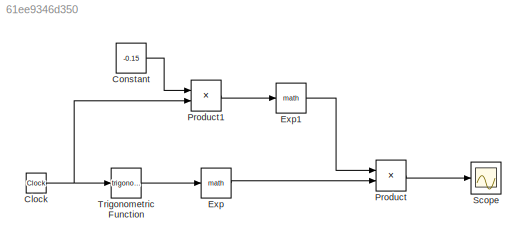
MODEL slx_61ee9346d350
KIND model
CONFIG AbsTol = auto
CONFIG EnableMultiTasking = off
CONFIG FixedStep = auto
CONFIG MaxStep = auto
CONFIG MinStep = auto
CONFIG RelTol = 1e-3
CONFIG SampleTimeConstraint = Unconstrained
CONFIG Solver = VariableStepAuto
CONFIG SolverName = VariableStepAuto
CONFIG StartTime = 0.0
CONFIG StopTime = 30.0
BLOCK [Clock] Clock
BLOCK [Constant] Constant
  Value = -0.15
BLOCK [Math] Exp
  Ports = [1, 1]
BLOCK [Math] Exp1
  Ports = [1, 1]
BLOCK [Product] Product
  InputSameDT = off
  OutDataTypeStr = Inherit: Inherit via internal rule
  Ports = [2, 1]
  RndMeth = Floor
  SaturateOnIntegerOverflow = off
BLOCK [Product] Product1
  InputSameDT = off
  OutDataTypeStr = Inherit: Inherit via internal rule
  Ports = [2, 1]
  RndMeth = Floor
  SaturateOnIntegerOverflow = off
BLOCK [Scope] Scope
  Floating = off
  NumInputPorts = 1
  Ports = [1]
  ScopeSpecificationString = Simulink.scopes.TimeScopeBlockCfg('CurrentConfiguration', extmgr.ConfigurationSet(extmgr.Configuration('Core','General UI',true),extmgr.Configuration('Core','Source UI',true),extmgr.Configuration('Sources','WiredSimulink',true),extmgr.Configuration('Visuals','Time Domain',true,'SerializedDisplays',{struct('MinYLimReal','-0.26051','MaxYLimReal','2.38597','YLabelReal','','MinYLimMag','0.00000','MaxY...<+1357ch>
BLOCK [Trigonometry] Trigonometric Function
  Ports = [1, 1]
NET Clock:1 -> Product1:2, Trigonometric Function:1
LINE Constant:1 -> Product1:1
LINE Exp1:1 -> Product:1
LINE Exp:1 -> Product:2
LINE Product1:1 -> Exp1:1
LINE Product:1 -> Scope:1
LINE Trigonometric Function:1 -> Exp:1
note: NET lines group one-source signal fan-out (src -> all destinations, sorted); 1:1 wires keep LINE
